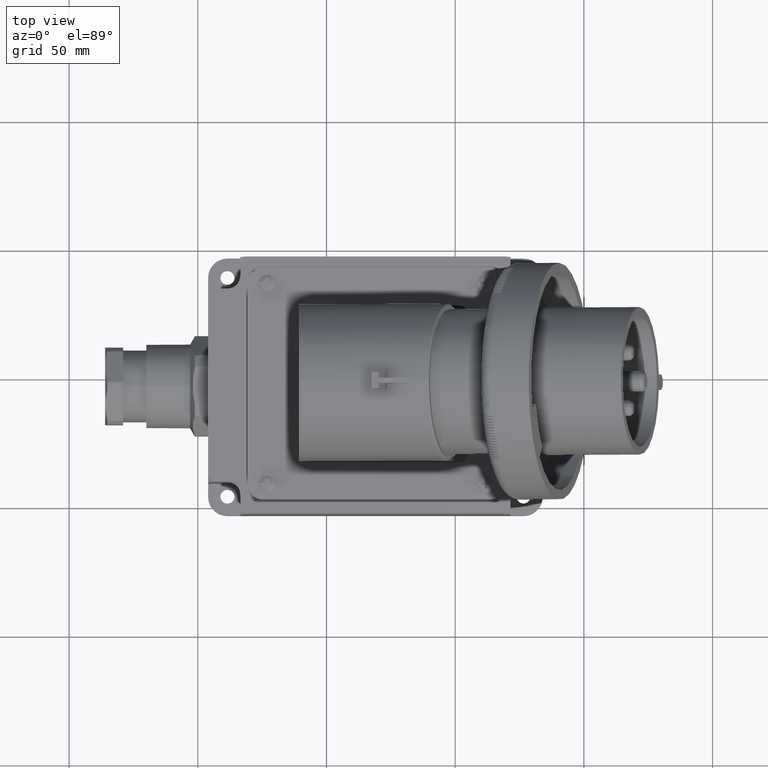
[diagram: clean part render]
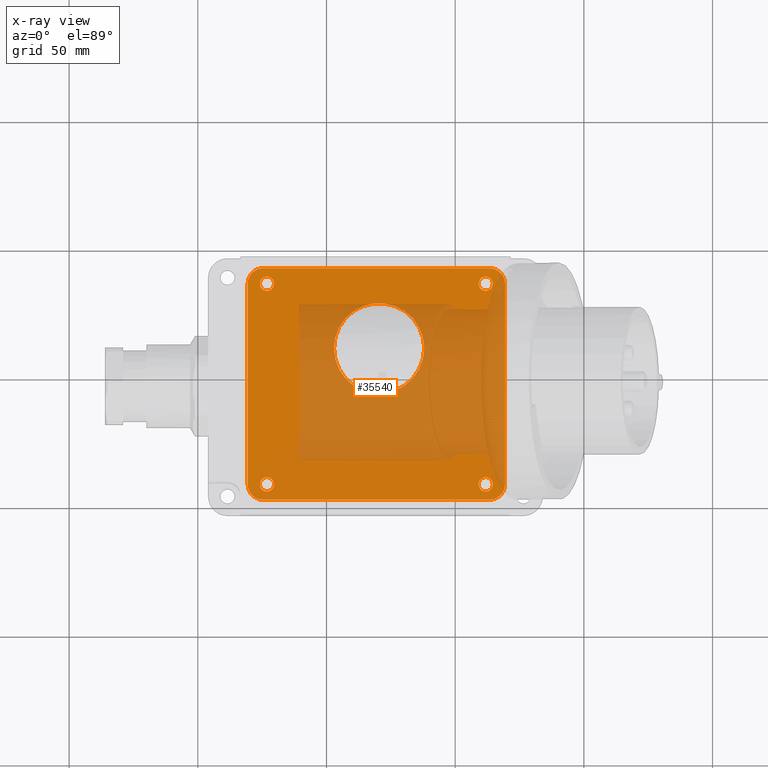
[diagram: x-ray — body ghosted, one internal face saturated and labeled with its STEP entity id]
A machine part, top view, then the same camera in x-ray: the body is ghosted and one INTERNAL B-rep face — a face not visible from any outside direction — is saturated and labeled: STEP entity #35540.
In plain terms, the highlighted planar face has unit normal (0, -0, -1).
Its self-contained STEP definition (entity closure, byte-faithful):
#33810=CARTESIAN_POINT('',(52.903972382818,61.3352417861547,47.3));
#33820=VERTEX_POINT('',#33810);
#33870=CARTESIAN_POINT('',(70.433972382818,61.3352417861547,47.3));
#33880=DIRECTION('',(8.32667268468867E-17,-2.4690564955787E-18,-1.));
#33890=DIRECTION('',(-1.,0.,-8.32667268468867E-17));
#33900=AXIS2_PLACEMENT_3D('',#33870,#33880,#33890);
#33910=CIRCLE('',#33900,17.53);
#33920=CARTESIAN_POINT('',(87.963972382818,61.3352417861547,47.3));
#33930=VERTEX_POINT('',#33920);
#33940=EDGE_CURVE('',#33930,#33820,#33910,.T.);
#34140=CARTESIAN_POINT('',(71.8511064276178,47.5,47.3));
#34150=DIRECTION('',(8.32667268468867E-17,-2.4690564955787E-18,-1.));
#34160=DIRECTION('',(1.,7.90931386737312E-17,8.32667268468867E-17));
#34170=AXIS2_PLACEMENT_3D('',#34140,#34150,#34160);
#34180=PLANE('',#34170);
#34190=CARTESIAN_POINT('',(26.8511064276177,8.49999999999997,47.3));
#34200=DIRECTION('',(-8.32667268468867E-17,6.32723826939967E-17,1.));
#34210=DIRECTION('',(-1.,-7.90931386737312E-17,-8.32667268468867E-17));
#34220=AXIS2_PLACEMENT_3D('',#34190,#34200,#34210);
#34230=CIRCLE('',#34220,2.75);
#34240=CARTESIAN_POINT('',(24.1011064276177,8.49999999999996,47.3));
#34250=VERTEX_POINT('',#34240);
#34260=CARTESIAN_POINT('',(29.6011064276177,8.49999999999996,47.3));
#34270=VERTEX_POINT('',#34260);
#34280=EDGE_CURVE('',#34250,#34270,#34230,.T.);
#34290=ORIENTED_EDGE('',*,*,#34280,.T.);
#34300=EDGE_CURVE('',#34270,#34250,#34230,.T.);
#34310=ORIENTED_EDGE('',*,*,#34300,.T.);
#34320=EDGE_LOOP('',(#34310,#34290));
#34330=FACE_BOUND('',#34320,.T.);
#34340=CARTESIAN_POINT('',(111.851106427618,86.5,47.3));
#34350=DIRECTION('',(-8.32667268468867E-17,6.32723826939967E-17,1.));
#34360=DIRECTION('',(-1.,-7.90931386737312E-17,-8.32667268468867E-17));
#34370=AXIS2_PLACEMENT_3D('',#34340,#34350,#34360);
#34380=CIRCLE('',#34370,2.75);
#34390=CARTESIAN_POINT('',(109.101106427618,86.5,47.3));
#34400=VERTEX_POINT('',#34390);
#34410=CARTESIAN_POINT('',(114.601106427618,86.5,47.3));
#34420=VERTEX_POINT('',#34410);
#34430=EDGE_CURVE('',#34400,#34420,#34380,.T.);
#34440=ORIENTED_EDGE('',*,*,#34430,.T.);
#34450=EDGE_CURVE('',#34420,#34400,#34380,.T.);
#34460=ORIENTED_EDGE('',*,*,#34450,.T.);
#34470=EDGE_LOOP('',(#34460,#34440));
#34480=FACE_BOUND('',#34470,.T.);
#34490=CARTESIAN_POINT('',(111.851106427618,8.49999999999997,47.3));
#34500=DIRECTION('',(-8.32667268468867E-17,6.32723826939967E-17,1.));
#34510=DIRECTION('',(-1.,-7.90931386737312E-17,-8.32667268468867E-17));
#34520=AXIS2_PLACEMENT_3D('',#34490,#34500,#34510);
#34530=CIRCLE('',#34520,2.75);
#34540=CARTESIAN_POINT('',(109.101106427618,8.49999999999997,47.3));
#34550=VERTEX_POINT('',#34540);
#34560=CARTESIAN_POINT('',(114.601106427618,8.49999999999997,47.3));
#34570=VERTEX_POINT('',#34560);
#34580=EDGE_CURVE('',#34550,#34570,#34530,.T.);
#34590=ORIENTED_EDGE('',*,*,#34580,.T.);
#34600=EDGE_CURVE('',#34570,#34550,#34530,.T.);
#34610=ORIENTED_EDGE('',*,*,#34600,.T.);
#34620=EDGE_LOOP('',(#34610,#34590));
#34630=FACE_BOUND('',#34620,.T.);
#34640=CARTESIAN_POINT('',(26.8511064276177,86.5,47.3));
#34650=DIRECTION('',(-8.32667268468867E-17,6.32723826939967E-17,1.));
#34660=DIRECTION('',(-1.,-7.90931386737312E-17,-8.32667268468867E-17));
#34670=AXIS2_PLACEMENT_3D('',#34640,#34650,#34660);
#34680=CIRCLE('',#34670,2.75);
#34690=CARTESIAN_POINT('',(24.1011064276177,86.5,47.3));
#34700=VERTEX_POINT('',#34690);
#34710=CARTESIAN_POINT('',(29.6011064276177,86.5,47.3));
#34720=VERTEX_POINT('',#34710);
#34730=EDGE_CURVE('',#34700,#34720,#34680,.T.);
#34740=ORIENTED_EDGE('',*,*,#34730,.T.);
#34750=EDGE_CURVE('',#34720,#34700,#34680,.T.);
#34760=ORIENTED_EDGE('',*,*,#34750,.T.);
#34770=EDGE_LOOP('',(#34760,#34740));
#34780=FACE_BOUND('',#34770,.T.);
#34790=CARTESIAN_POINT('',(25.3511064276177,8.49999999999997,47.3));
#34800=DIRECTION('',(-8.32667268468867E-17,-5.11505981257315E-17,1.));
#34810=DIRECTION('',(1.,7.90931386737312E-17,8.32667268468867E-17));
#34820=AXIS2_PLACEMENT_3D('',#34790,#34800,#34810);
#34830=CIRCLE('',#34820,6.);
#34840=CARTESIAN_POINT('',(19.3511064276177,8.49999999999996,47.3));
#34850=VERTEX_POINT('',#34840);
#34860=CARTESIAN_POINT('',(25.3511064276177,2.49999999999996,47.3));
#34870=VERTEX_POINT('',#34860);
#34880=EDGE_CURVE('',#34850,#34870,#34830,.T.);
#34890=ORIENTED_EDGE('',*,*,#34880,.F.);
#34900=CARTESIAN_POINT('',(119.351106427618,2.49999999999997,47.3));
#34910=DIRECTION('',(-1.,-7.90931386737312E-17,-8.32667268468867E-17));
#34920=VECTOR('',#34910,1.);
#34930=LINE('',#34900,#34920);
#34940=CARTESIAN_POINT('',(113.351106427618,2.49999999999997,47.3));
#34950=VERTEX_POINT('',#34940);
#34960=EDGE_CURVE('',#34950,#34870,#34930,.T.);
#34970=ORIENTED_EDGE('',*,*,#34960,.T.);
#34980=CARTESIAN_POINT('',(113.351106427618,8.49999999999997,47.3));
#34990=DIRECTION('',(8.32667268468867E-17,5.11505981257315E-17,-1.));
#35000=DIRECTION('',(-1.,-7.90931386737312E-17,-8.32667268468867E-17));
#35010=AXIS2_PLACEMENT_3D('',#34980,#34990,#35000);
#35020=CIRCLE('',#35010,6.);
#35030=CARTESIAN_POINT('',(119.351106427618,8.49999999999997,47.3));
#35040=VERTEX_POINT('',#35030);
#35050=EDGE_CURVE('',#35040,#34950,#35020,.T.);
#35060=ORIENTED_EDGE('',*,*,#35050,.T.);
#35070=CARTESIAN_POINT('',(119.351106427618,92.5,47.3));
#35080=DIRECTION('',(7.90931386737312E-17,-1.,2.4690564955787E-18));
#35090=VECTOR('',#35080,1.);
#35100=LINE('',#35070,#35090);
#35110=CARTESIAN_POINT('',(119.351106427618,86.5,47.3));
#35120=VERTEX_POINT('',#35110);
#35130=EDGE_CURVE('',#35120,#35040,#35100,.T.);
#35140=ORIENTED_EDGE('',*,*,#35130,.T.);
#35150=CARTESIAN_POINT('',(113.351106427618,86.5,47.3));
#35160=DIRECTION('',(8.32667268468867E-17,5.11505981257315E-17,-1.));
#35170=DIRECTION('',(-1.,-7.90931386737312E-17,-8.32667268468867E-17));
#35180=AXIS2_PLACEMENT_3D('',#35150,#35160,#35170);
#35190=CIRCLE('',#35180,6.);
#35200=CARTESIAN_POINT('',(113.351106427618,92.5,47.3));
#35210=VERTEX_POINT('',#35200);
#35220=EDGE_CURVE('',#35210,#35120,#35190,.T.);
#35230=ORIENTED_EDGE('',*,*,#35220,.T.);
#35240=CARTESIAN_POINT('',(19.3511064276177,92.5,47.3));
#35250=DIRECTION('',(1.,7.90931386737312E-17,8.32667268468867E-17));
#35260=VECTOR('',#35250,1.);
#35270=LINE('',#35240,#35260);
#35280=CARTESIAN_POINT('',(25.3511064276177,92.5,47.3));
#35290=VERTEX_POINT('',#35280);
#35300=EDGE_CURVE('',#35290,#35210,#35270,.T.);
#35310=ORIENTED_EDGE('',*,*,#35300,.T.);
#35320=CARTESIAN_POINT('',(25.3511064276177,86.5,47.3));
#35330=DIRECTION('',(8.32667268468867E-17,5.11505981257315E-17,-1.));
#35340=DIRECTION('',(-1.,-7.90931386737312E-17,-8.32667268468867E-17));
#35350=AXIS2_PLACEMENT_3D('',#35320,#35330,#35340);
#35360=CIRCLE('',#35350,6.);
#35370=CARTESIAN_POINT('',(19.3511064276177,86.5,47.3));
#35380=VERTEX_POINT('',#35370);
#35390=EDGE_CURVE('',#35380,#35290,#35360,.T.);
#35400=ORIENTED_EDGE('',*,*,#35390,.T.);
#35410=CARTESIAN_POINT('',(19.3511064276177,2.49999999999996,47.3));
#35420=DIRECTION('',(-7.90931386737312E-17,1.,-2.4690564955787E-18));
#35430=VECTOR('',#35420,1.);
#35440=LINE('',#35410,#35430);
#35450=EDGE_CURVE('',#34850,#35380,#35440,.T.);
#35460=ORIENTED_EDGE('',*,*,#35450,.T.);
#35470=EDGE_LOOP('',(#35460,#35400,#35310,#35230,#35140,#35060,#34970,
#34890));
#35480=FACE_OUTER_BOUND('',#35470,.T.);
#35490=EDGE_CURVE('',#33820,#33930,#33910,.T.);
#35500=ORIENTED_EDGE('',*,*,#35490,.F.);
#35510=ORIENTED_EDGE('',*,*,#33940,.F.);
#35520=EDGE_LOOP('',(#35510,#35500));
#35530=FACE_BOUND('',#35520,.T.);
#35540=ADVANCED_FACE('',(#34330,#34480,#34630,#34780,#35480,#35530),
#34180,.T.);